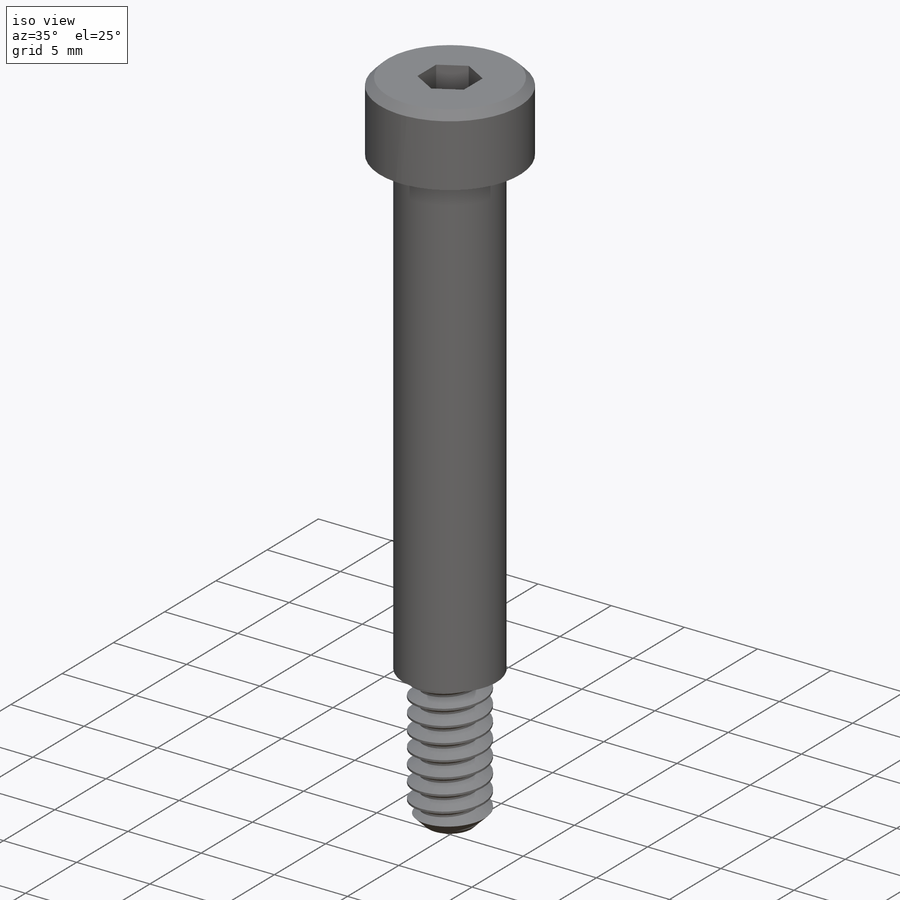
[diagram: iso view]
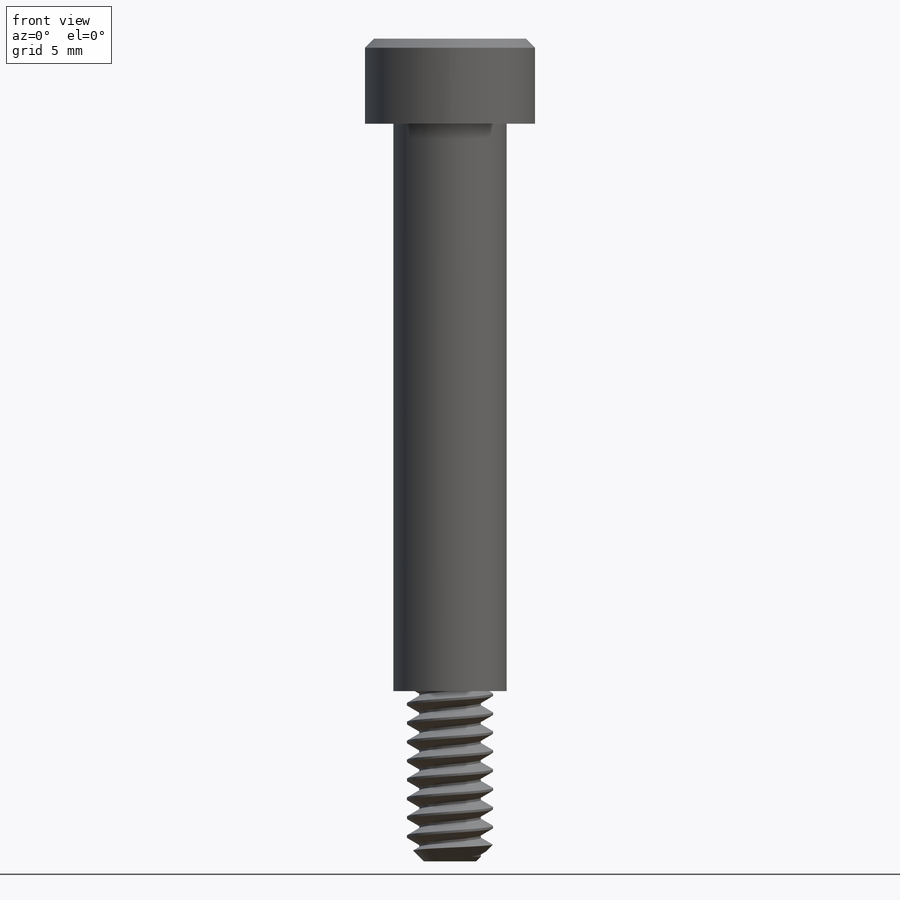
[diagram: front view]
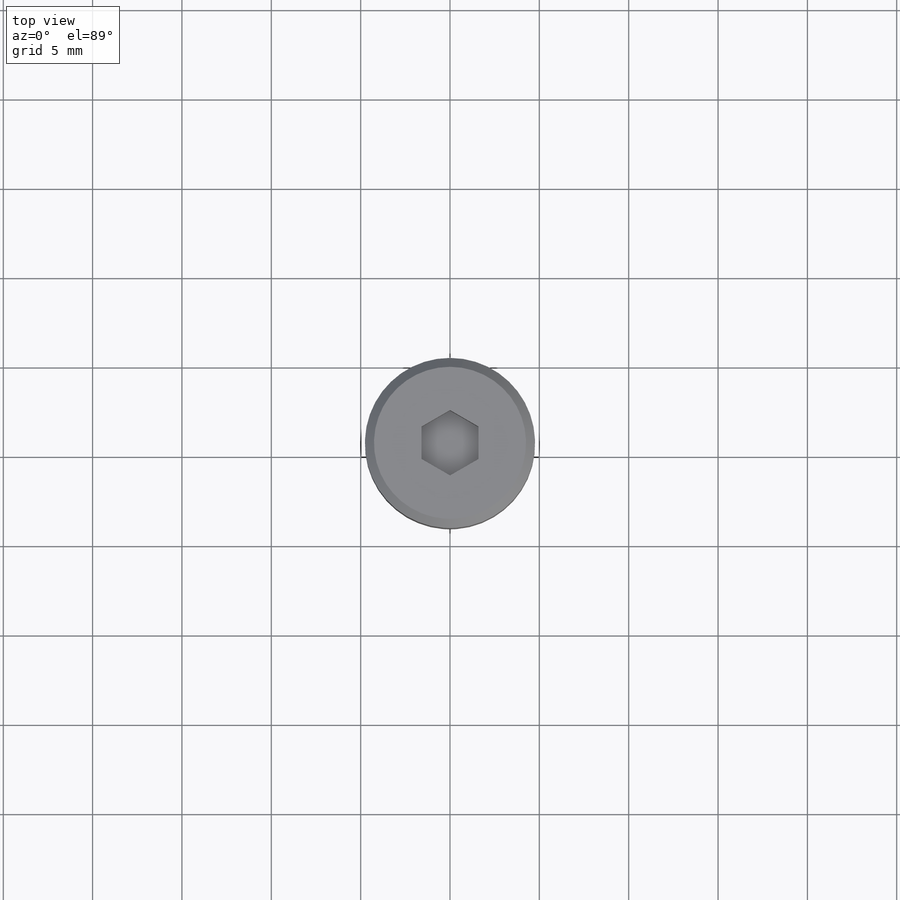
[diagram: top view]
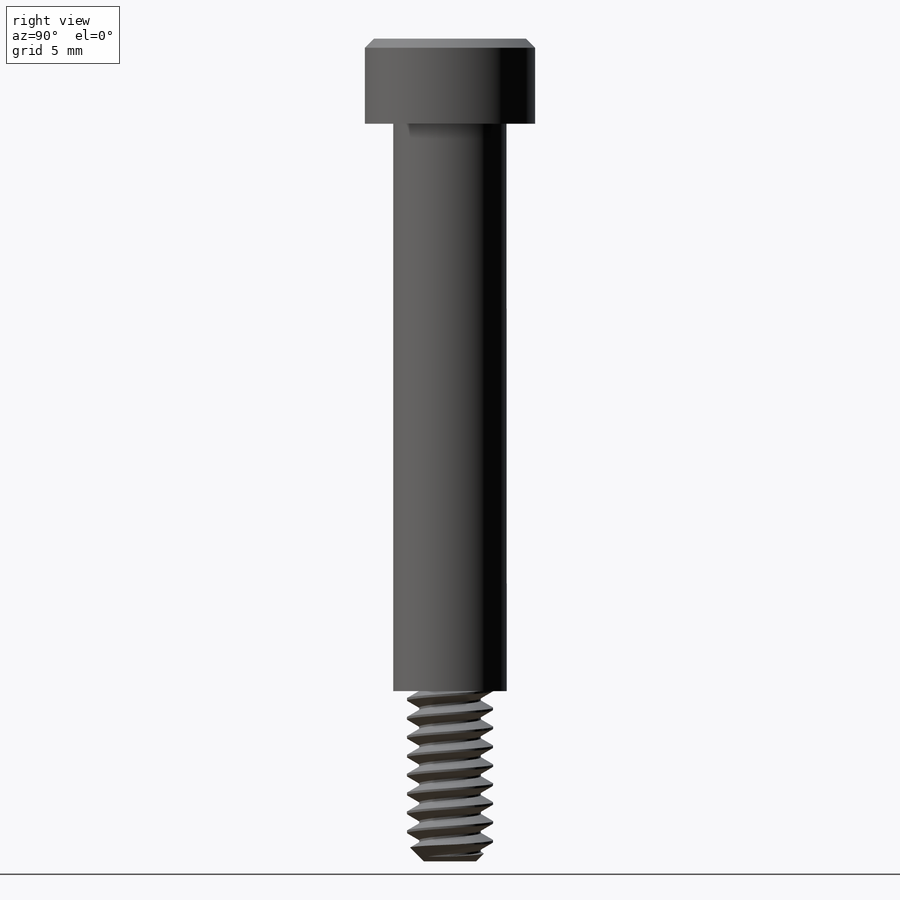
[diagram: right view]
SOLIDWORKS PART (.sldprt)
format: sldprt  version: not decoded by parser v0  size: 458,240 bytes
history: native  units: mm
features: sketch x9, extrude x3, chamfer x2, material x1, cut_extrude x1, helix x1, sweep x1 (+12 scaffold rows collapsed)
feature tree (30):
  scaffold x12  (default folders/planes/origin — collapsed)
  material  "Material <not specified>"
  sketch  "Sketch1"  dims[Head Dia=9.525mm]
  extrude  "Extrude1"  Depth=4.7625mm Head Ht=4.7625mm
  sketch  "Sketch2"  dims[Hex Key=~2.38125mm D1=1.905mm D2=0.9525mm Hex =3.175mm]
  cut_extrude  "Cut-Extrude1"  Depth=1.905mm
  sketch  "Sketch4"  dims[Shoulder Dia=6.35mm]
  extrude  "Extrude2"  Depth=31.75mm Shoulder Length=31.75mm
  sketch  "Sketch5"  dims[Screw Dia=4.826mm]
  extrude  "Extrude3"  Depth=9.525mm Screw Length=9.525mm
  chamfer  "Chamfer1"  Distance=0.508mm Angle=45deg
  chamfer  "Chamfer2"  Distance=0.9525mm Angle=45deg
  sketch  "Sketch7"  dims[D1=0.3175mm]
  helix  "Helix/Spiral1"  Pitch=14.2875mm Thread Pitch=1.058333mm
  sketch  "Sketch9"  dims[c1.D1=~0.555502mm c2.D1=60.0deg c2.D2=~0.132292mm c2.D3=~0.529167mm]
  sweep  "Cut-Sweep4"
  sketch  "Sketch10"  dims[D1=~5.23875mm D2=2.2225mm]
  sketch  "Sketch11"
  sketch  "Sketch12"
decode coverage: 14 of 17 modeling features carry decoded parameters
note: ~ marks probable driven/reference dimensions
note: suppression state not decoded; provenance and decode notes live in map.json
